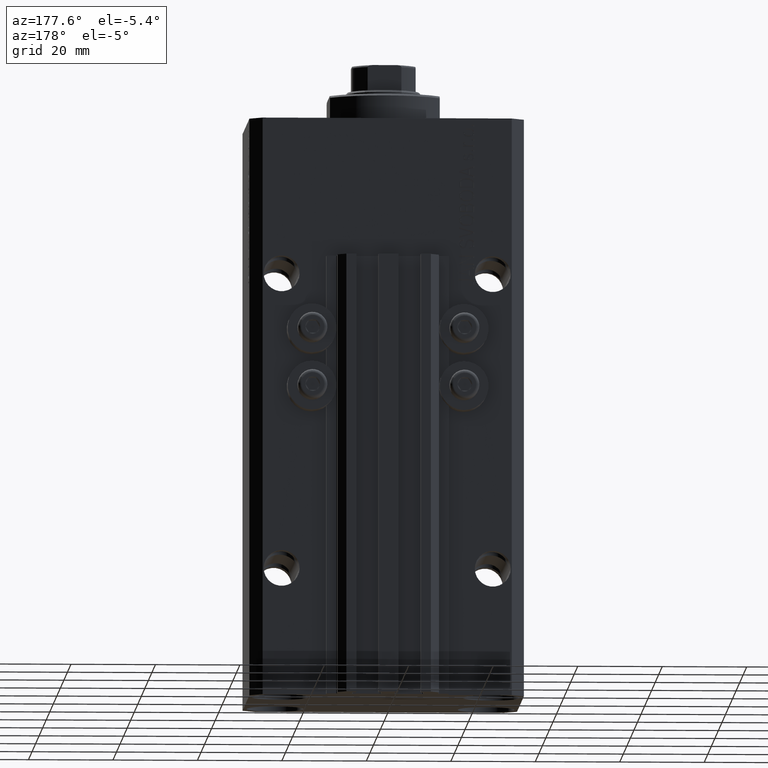
[diagram: clean part render]
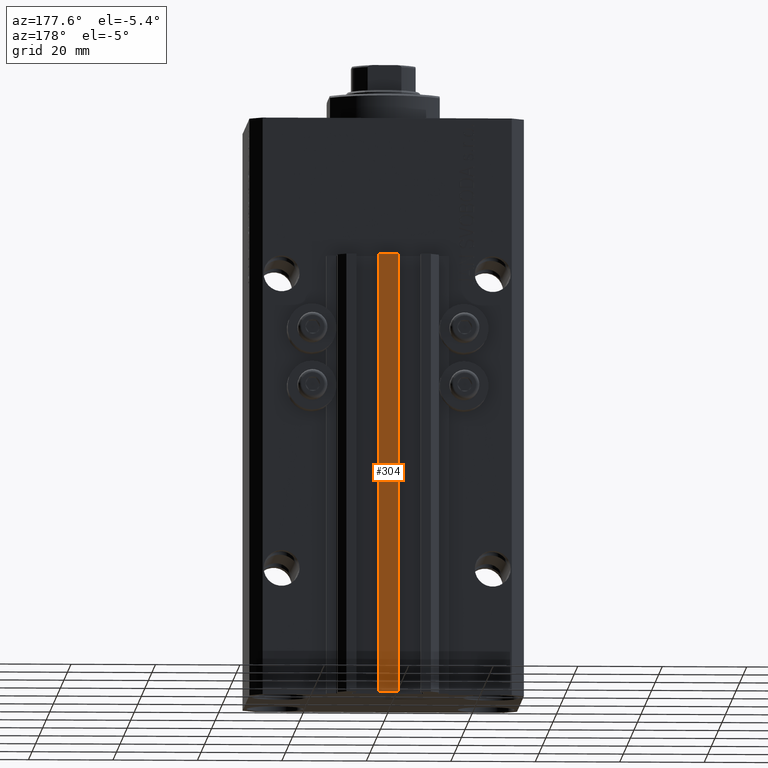
[diagram: same view with one face highlighted and labeled with its STEP entity id]
A machine part, auxiliary view. The second image highlights one B-rep face of the part: STEP entity #304.
In plain terms, the highlighted planar face has unit normal (0, -1, 0).
Its self-contained STEP definition (entity closure, byte-faithful):
#304 = ADVANCED_FACE ( 'NONE', ( #37849 ), #5031, .F. ) ;
#519 = VERTEX_POINT ( 'NONE', #41649 ) ;
#1246 = VECTOR ( 'NONE', #32909, 1000.000000000000000 ) ;
#2510 = CARTESIAN_POINT ( 'NONE',  ( -2.350000000000003197, 30.49999999999949907, -137.0000000000000000 ) ) ;
#3818 = VECTOR ( 'NONE', #19082, 1000.000000000000000 ) ;
#4143 = LINE ( 'NONE', #12074, #3818 ) ;
#5031 = PLANE ( 'NONE',  #39191 ) ;
#6895 = VECTOR ( 'NONE', #32199, 1000.000000000000000 ) ;
#8109 = ORIENTED_EDGE ( 'NONE', *, *, #31540, .F. ) ;
#8651 = DIRECTION ( 'NONE',  ( 0.000000000000000000, -0.000000000000000000, -1.000000000000000000 ) ) ;
#9831 = DIRECTION ( 'NONE',  ( 1.000000000000000000, 0.000000000000000000, 0.000000000000000000 ) ) ;
#12074 = CARTESIAN_POINT ( 'NONE',  ( 2.349999999999999645, 30.49999999999949907, -137.0000000000000000 ) ) ;
#14386 = LINE ( 'NONE', #17303, #33915 ) ;
#16093 = VERTEX_POINT ( 'NONE', #2510 ) ;
#17303 = CARTESIAN_POINT ( 'NONE',  ( -2.350000000000003197, 30.49999999999949907, -33.00000000000000000 ) ) ;
#17976 = CARTESIAN_POINT ( 'NONE',  ( -2.350000000000003197, 30.49999999999949907, -137.0000000000000000 ) ) ;
#19082 = DIRECTION ( 'NONE',  ( 0.000000000000000000, 0.000000000000000000, 1.000000000000000000 ) ) ;
#19561 = CARTESIAN_POINT ( 'NONE',  ( -2.350000000000003197, 30.49999999999949907, -33.00000000000000000 ) ) ;
#19738 = CARTESIAN_POINT ( 'NONE',  ( -2.350000000000003197, 30.49999999999949907, -137.0000000000000000 ) ) ;
#21690 = ORIENTED_EDGE ( 'NONE', *, *, #32964, .T. ) ;
#24010 = LINE ( 'NONE', #25607, #6895 ) ;
#25607 = CARTESIAN_POINT ( 'NONE',  ( -2.350000000000003197, 30.49999999999949907, -137.0000000000000000 ) ) ;
#26480 = CARTESIAN_POINT ( 'NONE',  ( 2.349999999999999645, 30.49999999999949907, -137.0000000000000000 ) ) ;
#28612 = EDGE_LOOP ( 'NONE', ( #21690, #8109, #31205, #41621 ) ) ;
#29504 = VERTEX_POINT ( 'NONE', #19561 ) ;
#31205 = ORIENTED_EDGE ( 'NONE', *, *, #47668, .F. ) ;
#31540 = EDGE_CURVE ( 'NONE', #33476, #519, #4143, .T. ) ;
#32199 = DIRECTION ( 'NONE',  ( 0.000000000000000000, 0.000000000000000000, 1.000000000000000000 ) ) ;
#32909 = DIRECTION ( 'NONE',  ( 1.000000000000000000, 0.000000000000000000, 0.000000000000000000 ) ) ;
#32964 = EDGE_CURVE ( 'NONE', #29504, #519, #14386, .T. ) ;
#33476 = VERTEX_POINT ( 'NONE', #26480 ) ;
#33915 = VECTOR ( 'NONE', #9831, 1000.000000000000000 ) ;
#35212 = EDGE_CURVE ( 'NONE', #16093, #29504, #24010, .T. ) ;
#37849 = FACE_OUTER_BOUND ( 'NONE', #28612, .T. ) ;
#39191 = AXIS2_PLACEMENT_3D ( 'NONE', #19738, #41705, #8651 ) ;
#41621 = ORIENTED_EDGE ( 'NONE', *, *, #35212, .T. ) ;
#41649 = CARTESIAN_POINT ( 'NONE',  ( 2.349999999999999645, 30.49999999999949907, -33.00000000000000000 ) ) ;
#41705 = DIRECTION ( 'NONE',  ( 0.000000000000000000, -1.000000000000000000, 0.000000000000000000 ) ) ;
#46903 = LINE ( 'NONE', #17976, #1246 ) ;
#47668 = EDGE_CURVE ( 'NONE', #16093, #33476, #46903, .T. ) ;